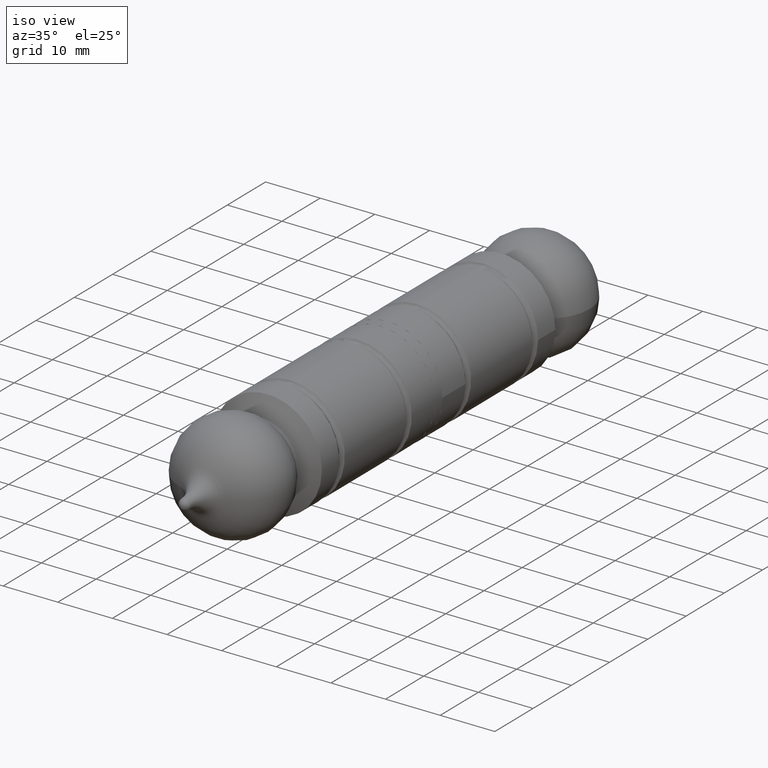
[diagram: clean part render]
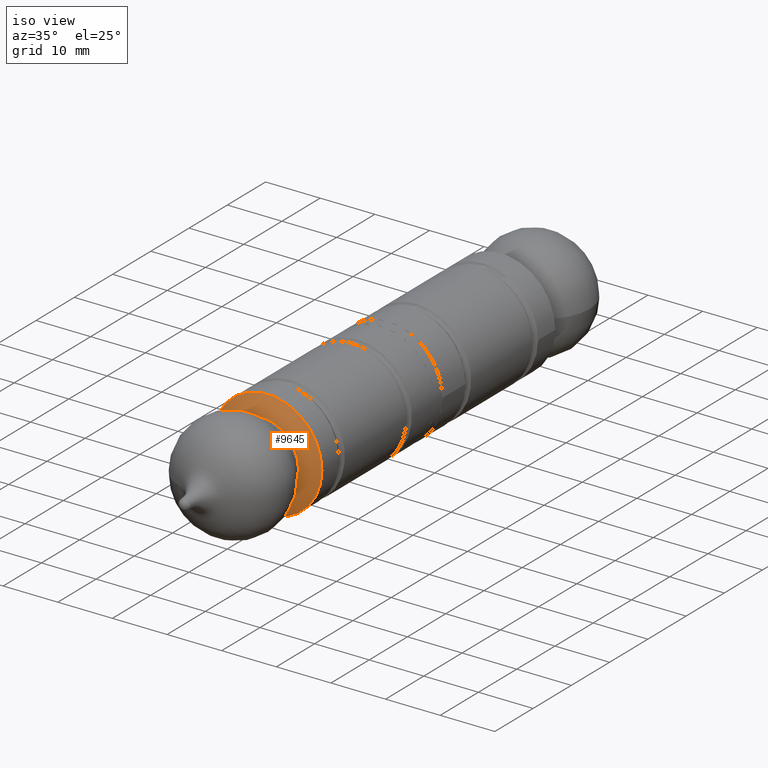
[diagram: same view with one face highlighted and labeled with its STEP entity id]
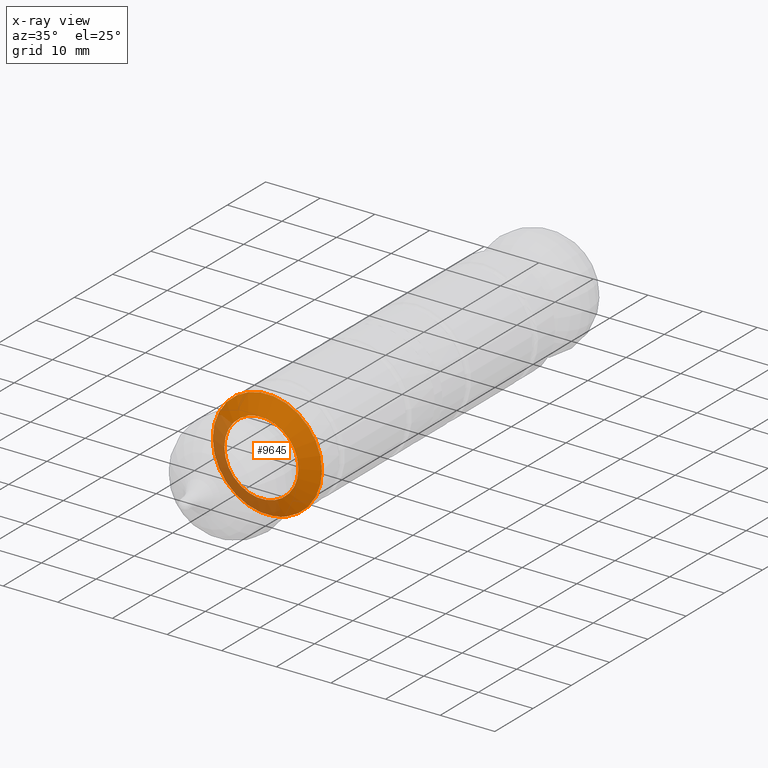
[diagram: x-ray of the same camera — body ghosted, the highlighted face saturated]
A machine part, iso view. The second image highlights one B-rep face of the part: STEP entity #9645.
The next image is the same camera in x-ray: the body ghosted, the highlighted face saturated — about 26% of this face is hidden behind the body in this view.
In plain terms, the highlighted conical surface has half-angle 64.281 deg.
Its self-contained STEP definition (entity closure, byte-faithful):
#846 = FACE_OUTER_BOUND ( 'NONE', #7803, .T. ) ;
#1850 = CIRCLE ( 'NONE', #8065, 10.00000000000000355 ) ;
#1909 = AXIS2_PLACEMENT_3D ( 'NONE', #3420, #10699, #3502 ) ;
#3420 = CARTESIAN_POINT ( 'NONE',  ( -1.804562564151504181E-15, -31.04953297527637801, 0.000000000000000000 ) ) ;
#3502 = DIRECTION ( 'NONE',  ( -1.000000000000000000, 0.000000000000000000, 0.000000000000000000 ) ) ;
#3920 = CARTESIAN_POINT ( 'NONE',  ( -1.714505518806294638E-15, -29.50000000000000000, 0.000000000000000000 ) ) ;
#4633 = VERTEX_POINT ( 'NONE', #11240 ) ;
#4854 = DIRECTION ( 'NONE',  ( -1.000000000000000000, 0.000000000000000000, 0.000000000000000000 ) ) ;
#4933 = EDGE_LOOP ( 'NONE', ( #5104 ) ) ;
#5071 = CIRCLE ( 'NONE', #11118, 6.783021983517581788 ) ;
#5104 = ORIENTED_EDGE ( 'NONE', *, *, #10921, .T. ) ;
#6470 = DIRECTION ( 'NONE',  ( -1.000000000000000000, 0.000000000000000000, 0.000000000000000000 ) ) ;
#7349 = DIRECTION ( 'NONE',  ( 5.811883114597608921E-17, 1.000000000000000000, -0.000000000000000000 ) ) ;
#7459 = FACE_BOUND ( 'NONE', #4933, .T. ) ;
#7506 = DIRECTION ( 'NONE',  ( 5.811883114597608921E-17, 1.000000000000000000, -0.000000000000000000 ) ) ;
#7803 = EDGE_LOOP ( 'NONE', ( #8569 ) ) ;
#8065 = AXIS2_PLACEMENT_3D ( 'NONE', #3920, #7506, #4854 ) ;
#8569 = ORIENTED_EDGE ( 'NONE', *, *, #9459, .F. ) ;
#9459 = EDGE_CURVE ( 'NONE', #4633, #4633, #1850, .T. ) ;
#9645 = ADVANCED_FACE ( 'NONE', ( #846, #7459 ), #11037, .T. ) ;
#10065 = CARTESIAN_POINT ( 'NONE',  ( -1.804562564151504181E-15, -31.04953297527637801, 0.000000000000000000 ) ) ;
#10540 = CARTESIAN_POINT ( 'NONE',  ( -6.783021983517583564, -31.04953297527637801, 0.000000000000000000 ) ) ;
#10699 = DIRECTION ( 'NONE',  ( 5.811883114597608921E-17, 1.000000000000000000, -0.000000000000000000 ) ) ;
#10700 = VERTEX_POINT ( 'NONE', #10540 ) ;
#10921 = EDGE_CURVE ( 'NONE', #10700, #10700, #5071, .T. ) ;
#11037 = CONICAL_SURFACE ( 'NONE', #1909, 6.783021983517581788, 1.121917134614727640 ) ;
#11118 = AXIS2_PLACEMENT_3D ( 'NONE', #10065, #7349, #6470 ) ;
#11240 = CARTESIAN_POINT ( 'NONE',  ( -10.00000000000000533, -29.50000000000000000, 0.000000000000000000 ) ) ;